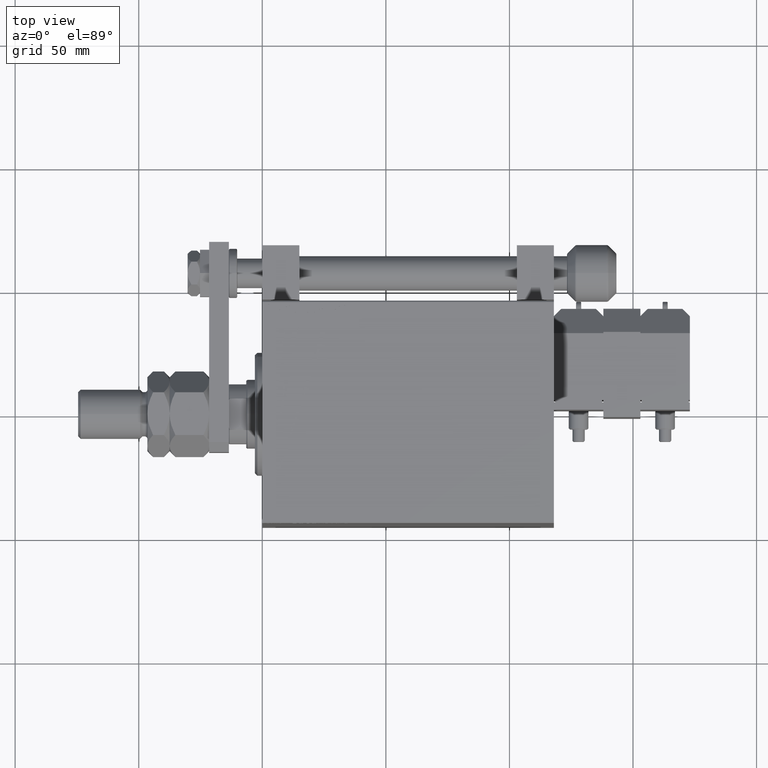
[diagram: clean part render]
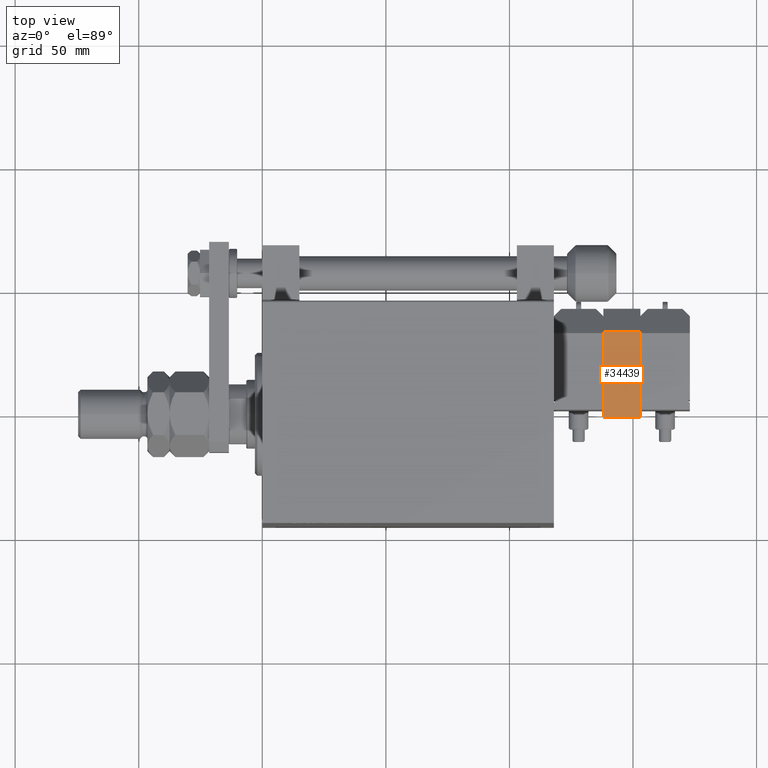
[diagram: same view with one face highlighted and labeled with its STEP entity id]
A machine part, top view. The second image highlights one B-rep face of the part: STEP entity #34439.
In plain terms, the highlighted planar face has unit normal (0, 0, -1).
Its self-contained STEP definition (entity closure, byte-faithful):
#430 = VECTOR ( 'NONE', #48855, 1000.000000000000000 ) ;
#1314 = VECTOR ( 'NONE', #32265, 1000.000000000000000 ) ;
#3211 = AXIS2_PLACEMENT_3D ( 'NONE', #33912, #17413, #21124 ) ;
#4218 = VERTEX_POINT ( 'NONE', #42484 ) ;
#5609 = CARTESIAN_POINT ( 'NONE',  ( -20.00000000000000000, 12.50000000000000533, 15.00000000000000000 ) ) ;
#5715 = FACE_OUTER_BOUND ( 'NONE', #38197, .T. ) ;
#6795 = CARTESIAN_POINT ( 'NONE',  ( -19.99999999999999289, -22.00000000000000000, 15.00000000000000000 ) ) ;
#7202 = ORIENTED_EDGE ( 'NONE', *, *, #24064, .F. ) ;
#7332 = LINE ( 'NONE', #44541, #18506 ) ;
#7965 = ORIENTED_EDGE ( 'NONE', *, *, #24979, .T. ) ;
#8420 = CARTESIAN_POINT ( 'NONE',  ( -20.00000000000000000, 22.00000000000000000, 15.00000000000000000 ) ) ;
#8960 = LINE ( 'NONE', #8420, #430 ) ;
#13725 = LINE ( 'NONE', #6795, #40975 ) ;
#16883 = PLANE ( 'NONE',  #3211 ) ;
#17413 = DIRECTION ( 'NONE',  ( 1.000000000000000000, 1.577021341797097560E-16, -0.000000000000000000 ) ) ;
#18506 = VECTOR ( 'NONE', #40033, 1000.000000000000000 ) ;
#19022 = DIRECTION ( 'NONE',  ( -0.000000000000000000, -0.000000000000000000, -1.000000000000000000 ) ) ;
#20309 = CARTESIAN_POINT ( 'NONE',  ( -20.00000000000000000, 12.50000000000000533, 0.000000000000000000 ) ) ;
#21124 = DIRECTION ( 'NONE',  ( -1.577021341797097560E-16, 1.000000000000000000, 0.000000000000000000 ) ) ;
#24064 = EDGE_CURVE ( 'NONE', #4218, #51095, #8960, .T. ) ;
#24979 = EDGE_CURVE ( 'NONE', #4218, #26664, #42043, .T. ) ;
#25183 = ORIENTED_EDGE ( 'NONE', *, *, #50868, .F. ) ;
#25731 = VERTEX_POINT ( 'NONE', #43992 ) ;
#26664 = VERTEX_POINT ( 'NONE', #20309 ) ;
#32265 = DIRECTION ( 'NONE',  ( -0.000000000000000000, 0.000000000000000000, -1.000000000000000000 ) ) ;
#33912 = CARTESIAN_POINT ( 'NONE',  ( -20.00000000000000000, 22.00000000000000000, 15.00000000000000000 ) ) ;
#34367 = EDGE_CURVE ( 'NONE', #26664, #25731, #7332, .T. ) ;
#34439 = ADVANCED_FACE ( 'NONE', ( #5715 ), #16883, .F. ) ;
#38197 = EDGE_LOOP ( 'NONE', ( #7202, #7965, #51922, #25183 ) ) ;
#40033 = DIRECTION ( 'NONE',  ( 1.577021341797097560E-16, -1.000000000000000000, 0.000000000000000000 ) ) ;
#40975 = VECTOR ( 'NONE', #19022, 1000.000000000000000 ) ;
#42043 = LINE ( 'NONE', #5609, #1314 ) ;
#42484 = CARTESIAN_POINT ( 'NONE',  ( -20.00000000000000000, 12.50000000000000533, 15.00000000000000000 ) ) ;
#43992 = CARTESIAN_POINT ( 'NONE',  ( -19.99999999999999289, -22.00000000000000000, 0.000000000000000000 ) ) ;
#44403 = CARTESIAN_POINT ( 'NONE',  ( -19.99999999999999289, -22.00000000000000000, 15.00000000000000000 ) ) ;
#44541 = CARTESIAN_POINT ( 'NONE',  ( -20.00000000000000000, 22.00000000000000000, 0.000000000000000000 ) ) ;
#48855 = DIRECTION ( 'NONE',  ( 1.577021341797097560E-16, -1.000000000000000000, 0.000000000000000000 ) ) ;
#50868 = EDGE_CURVE ( 'NONE', #51095, #25731, #13725, .T. ) ;
#51095 = VERTEX_POINT ( 'NONE', #44403 ) ;
#51922 = ORIENTED_EDGE ( 'NONE', *, *, #34367, .T. ) ;